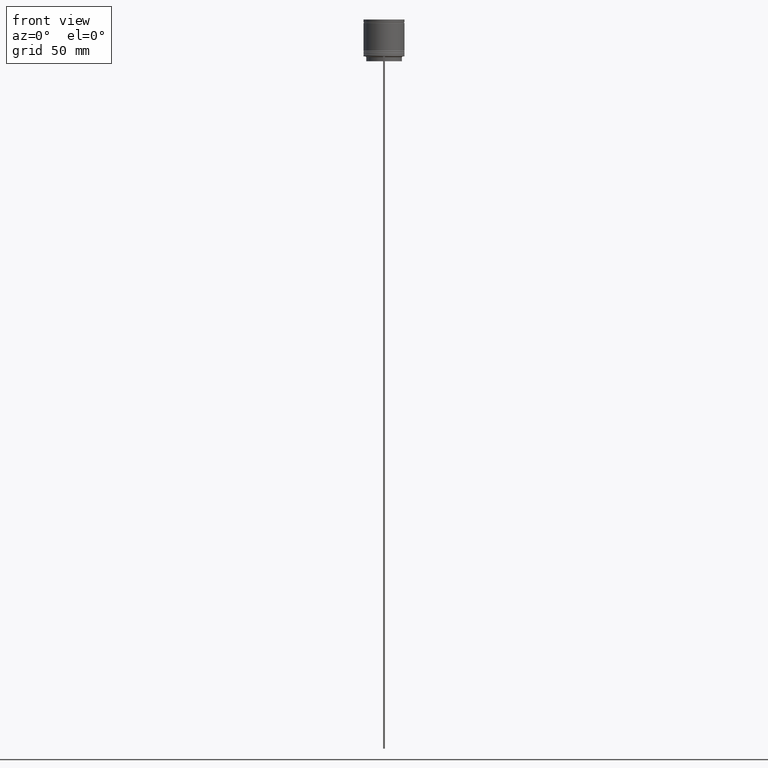
[diagram: clean part render]
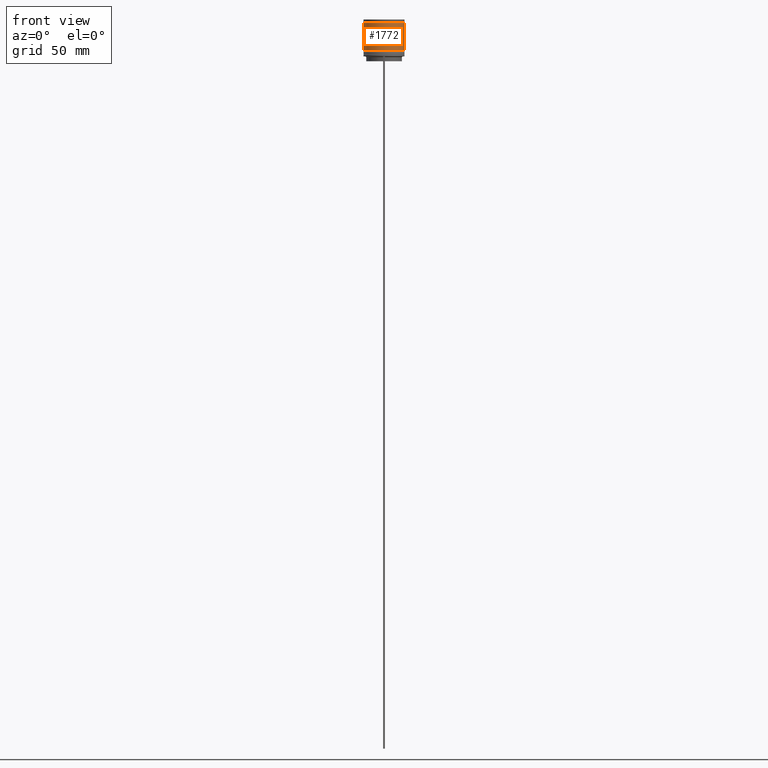
[diagram: same view with one face highlighted and labeled with its STEP entity id]
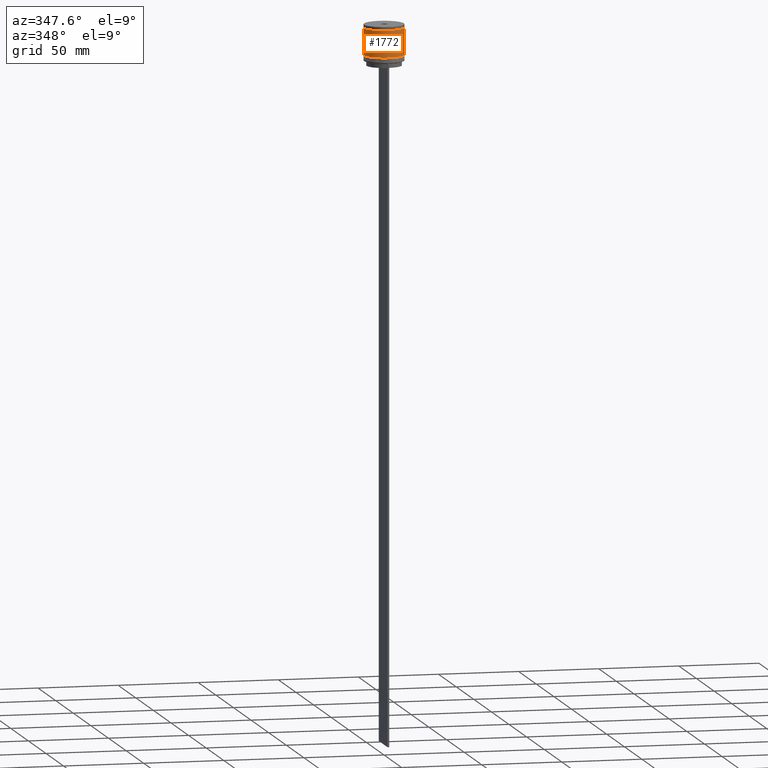
[diagram: same view with one face highlighted and labeled with its STEP entity id]
A machine part, front view. The second image highlights one B-rep face of the part: STEP entity #1772.
A second angle (auxiliary view) of the same face is appended — the face is thin or edge-on in the first view.
In plain terms, the highlighted cylindrical surface (edge-blend (fillet) strip) has radius 12.5 mm, axis along (-0, -0, 1).
Its self-contained STEP definition (entity closure, byte-faithful):
#14 = DIRECTION ( 'NONE',  ( 1.000000000000000000, 0.000000000000000000, 0.000000000000000000 ) ) ;
#40 = EDGE_CURVE ( 'NONE', #1104, #1373, #1035, .T. ) ;
#127 = CIRCLE ( 'NONE', #2048, 12.50000000000000178 ) ;
#186 = VERTEX_POINT ( 'NONE', #608 ) ;
#225 = CARTESIAN_POINT ( 'NONE',  ( -12.50000000000000000, 1.530808498934191521E-15, 0.000000000000000000 ) ) ;
#316 = CARTESIAN_POINT ( 'NONE',  ( 12.49999999999999645, 0.000000000000000000, -2.199999999999994404 ) ) ;
#369 = AXIS2_PLACEMENT_3D ( 'NONE', #383, #527, #1043 ) ;
#383 = CARTESIAN_POINT ( 'NONE',  ( 0.000000000000000000, 0.000000000000000000, 0.000000000000000000 ) ) ;
#443 = DIRECTION ( 'NONE',  ( 1.000000000000000000, 0.000000000000000000, 0.000000000000000000 ) ) ;
#480 = CARTESIAN_POINT ( 'NONE',  ( 0.000000000000000000, 0.000000000000000000, -2.199999999999994404 ) ) ;
#498 = ORIENTED_EDGE ( 'NONE', *, *, #855, .T. ) ;
#527 = DIRECTION ( 'NONE',  ( -0.000000000000000000, -0.000000000000000000, 1.000000000000000000 ) ) ;
#603 = VECTOR ( 'NONE', #1031, 1000.000000000000000 ) ;
#608 = CARTESIAN_POINT ( 'NONE',  ( 12.50000000000000178, 0.000000000000000000, -19.00000000000000000 ) ) ;
#713 = CYLINDRICAL_SURFACE ( 'NONE', #369, 12.50000000000000000 ) ;
#792 = DIRECTION ( 'NONE',  ( -0.000000000000000000, -0.000000000000000000, 1.000000000000000000 ) ) ;
#811 = ORIENTED_EDGE ( 'NONE', *, *, #1576, .F. ) ;
#855 = EDGE_CURVE ( 'NONE', #186, #2028, #1877, .T. ) ;
#899 = EDGE_LOOP ( 'NONE', ( #1922, #1563, #498, #811 ) ) ;
#966 = CARTESIAN_POINT ( 'NONE',  ( 0.000000000000000000, 0.000000000000000000, -19.00000000000000000 ) ) ;
#991 = DIRECTION ( 'NONE',  ( -0.000000000000000000, -0.000000000000000000, 1.000000000000000000 ) ) ;
#1013 = EDGE_CURVE ( 'NONE', #1104, #186, #127, .T. ) ;
#1031 = DIRECTION ( 'NONE',  ( -0.000000000000000000, -0.000000000000000000, 1.000000000000000000 ) ) ;
#1034 = FACE_OUTER_BOUND ( 'NONE', #899, .T. ) ;
#1035 = LINE ( 'NONE', #225, #1620 ) ;
#1043 = DIRECTION ( 'NONE',  ( 1.000000000000000000, 0.000000000000000000, 0.000000000000000000 ) ) ;
#1104 = VERTEX_POINT ( 'NONE', #1309 ) ;
#1240 = CARTESIAN_POINT ( 'NONE',  ( 12.50000000000000000, 0.000000000000000000, 0.000000000000000000 ) ) ;
#1309 = CARTESIAN_POINT ( 'NONE',  ( -12.50000000000000355, 1.530808498934191916E-15, -19.00000000000000000 ) ) ;
#1373 = VERTEX_POINT ( 'NONE', #1522 ) ;
#1522 = CARTESIAN_POINT ( 'NONE',  ( -12.49999999999999645, 1.530808498934191324E-15, -2.199999999999994404 ) ) ;
#1563 = ORIENTED_EDGE ( 'NONE', *, *, #1013, .T. ) ;
#1576 = EDGE_CURVE ( 'NONE', #1373, #2028, #1687, .T. ) ;
#1620 = VECTOR ( 'NONE', #1674, 1000.000000000000000 ) ;
#1674 = DIRECTION ( 'NONE',  ( -0.000000000000000000, -0.000000000000000000, 1.000000000000000000 ) ) ;
#1687 = CIRCLE ( 'NONE', #2052, 12.49999999999999645 ) ;
#1772 = ADVANCED_FACE ( 'NONE', ( #1034 ), #713, .T. ) ;
#1877 = LINE ( 'NONE', #1240, #603 ) ;
#1922 = ORIENTED_EDGE ( 'NONE', *, *, #40, .F. ) ;
#2028 = VERTEX_POINT ( 'NONE', #316 ) ;
#2048 = AXIS2_PLACEMENT_3D ( 'NONE', #966, #792, #443 ) ;
#2052 = AXIS2_PLACEMENT_3D ( 'NONE', #480, #991, #14 ) ;